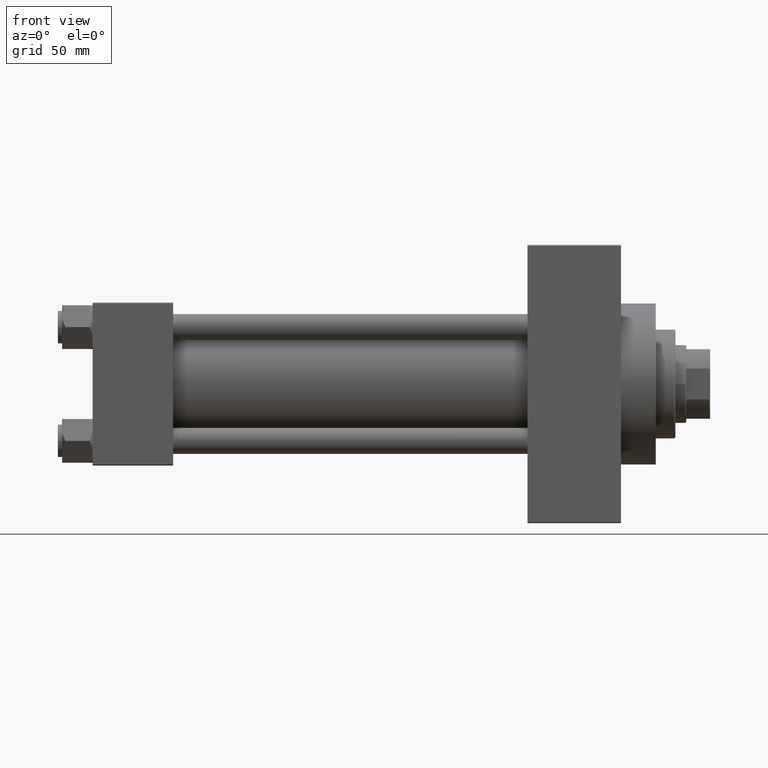
[diagram: clean part render]
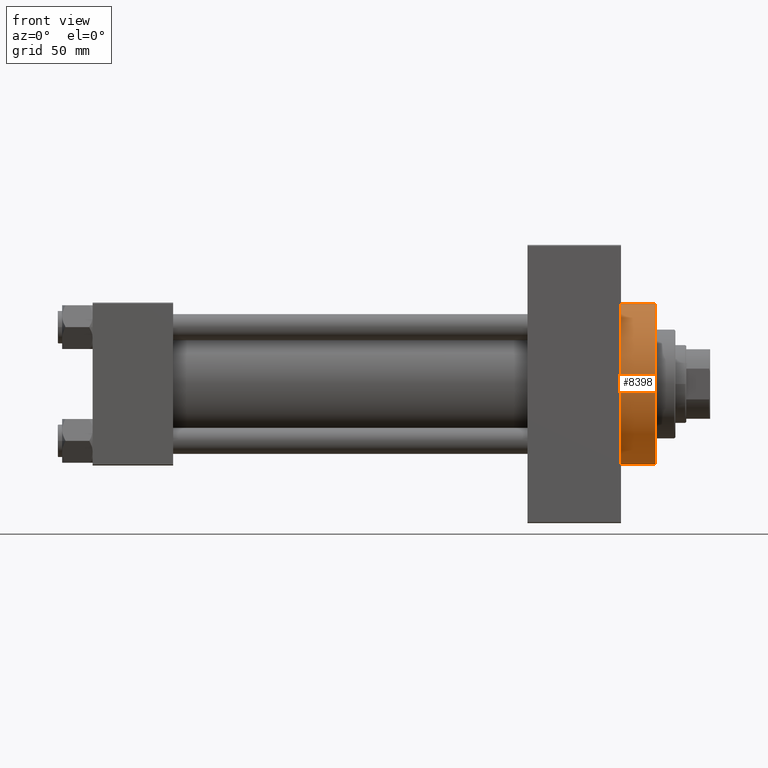
[diagram: same view with one face highlighted and labeled with its STEP entity id]
A machine part, front view. The second image highlights one B-rep face of the part: STEP entity #8398.
In plain terms, the highlighted cylindrical surface (partial cylindrical patch) has radius 37 mm, axis along (-1, -0, -0).
Its self-contained STEP definition (entity closure, byte-faithful):
#610 = ORIENTED_EDGE ( 'NONE', *, *, #48265, .T. ) ;
#2018 = EDGE_CURVE ( 'NONE', #12628, #17364, #14993, .T. ) ;
#3905 = CARTESIAN_POINT ( 'NONE',  ( 259.0000000000000000, 0.000000000000000000, 37.00000000000000000 ) ) ;
#3952 = DIRECTION ( 'NONE',  ( 0.000000000000000000, 0.000000000000000000, 1.000000000000000000 ) ) ;
#3955 = ORIENTED_EDGE ( 'NONE', *, *, #11019, .T. ) ;
#4423 = CARTESIAN_POINT ( 'NONE',  ( 259.0000000000000000, 0.000000000000000000, 0.000000000000000000 ) ) ;
#7015 = CARTESIAN_POINT ( 'NONE',  ( 243.0000000000000000, 4.531193156845206793E-15, -37.00000000000000000 ) ) ;
#7226 = CARTESIAN_POINT ( 'NONE',  ( 259.0000000000000000, 4.531193156845206793E-15, -37.00000000000000000 ) ) ;
#8398 = ADVANCED_FACE ( 'NONE', ( #41802 ), #23008, .T. ) ;
#10655 = ORIENTED_EDGE ( 'NONE', *, *, #40536, .F. ) ;
#11019 = EDGE_CURVE ( 'NONE', #12628, #43642, #33652, .T. ) ;
#11072 = AXIS2_PLACEMENT_3D ( 'NONE', #49583, #46055, #3952 ) ;
#11836 = CARTESIAN_POINT ( 'NONE',  ( 243.0000000000000000, 0.000000000000000000, 0.000000000000000000 ) ) ;
#12628 = VERTEX_POINT ( 'NONE', #3905 ) ;
#12817 = EDGE_LOOP ( 'NONE', ( #10655, #26195, #3955, #610 ) ) ;
#14993 = CIRCLE ( 'NONE', #42979, 37.00000000000000000 ) ;
#15473 = DIRECTION ( 'NONE',  ( 0.000000000000000000, 0.000000000000000000, -1.000000000000000000 ) ) ;
#17364 = VERTEX_POINT ( 'NONE', #7226 ) ;
#23008 = CYLINDRICAL_SURFACE ( 'NONE', #11072, 37.00000000000000000 ) ;
#23493 = VECTOR ( 'NONE', #31965, 1000.000000000000000 ) ;
#26195 = ORIENTED_EDGE ( 'NONE', *, *, #2018, .F. ) ;
#27120 = DIRECTION ( 'NONE',  ( 1.000000000000000000, 0.000000000000000000, 0.000000000000000000 ) ) ;
#30127 = CARTESIAN_POINT ( 'NONE',  ( 259.0000000000000000, 0.000000000000000000, 37.00000000000000000 ) ) ;
#31235 = LINE ( 'NONE', #39250, #23493 ) ;
#31930 = CARTESIAN_POINT ( 'NONE',  ( 243.0000000000000000, 0.000000000000000000, 37.00000000000000000 ) ) ;
#31965 = DIRECTION ( 'NONE',  ( -1.000000000000000000, -0.000000000000000000, -0.000000000000000000 ) ) ;
#33652 = LINE ( 'NONE', #30127, #35182 ) ;
#34507 = DIRECTION ( 'NONE',  ( 1.000000000000000000, 0.000000000000000000, 0.000000000000000000 ) ) ;
#35182 = VECTOR ( 'NONE', #48961, 1000.000000000000000 ) ;
#39250 = CARTESIAN_POINT ( 'NONE',  ( 259.0000000000000000, 4.531193156845206793E-15, -37.00000000000000000 ) ) ;
#40400 = CIRCLE ( 'NONE', #45215, 37.00000000000000000 ) ;
#40536 = EDGE_CURVE ( 'NONE', #17364, #45233, #31235, .T. ) ;
#41802 = FACE_OUTER_BOUND ( 'NONE', #12817, .T. ) ;
#42407 = DIRECTION ( 'NONE',  ( 0.000000000000000000, 0.000000000000000000, -1.000000000000000000 ) ) ;
#42979 = AXIS2_PLACEMENT_3D ( 'NONE', #4423, #34507, #15473 ) ;
#43642 = VERTEX_POINT ( 'NONE', #31930 ) ;
#45215 = AXIS2_PLACEMENT_3D ( 'NONE', #11836, #27120, #42407 ) ;
#45233 = VERTEX_POINT ( 'NONE', #7015 ) ;
#46055 = DIRECTION ( 'NONE',  ( -1.000000000000000000, -0.000000000000000000, -0.000000000000000000 ) ) ;
#48265 = EDGE_CURVE ( 'NONE', #43642, #45233, #40400, .T. ) ;
#48961 = DIRECTION ( 'NONE',  ( -1.000000000000000000, -0.000000000000000000, -0.000000000000000000 ) ) ;
#49583 = CARTESIAN_POINT ( 'NONE',  ( 259.0000000000000000, 0.000000000000000000, 0.000000000000000000 ) ) ;